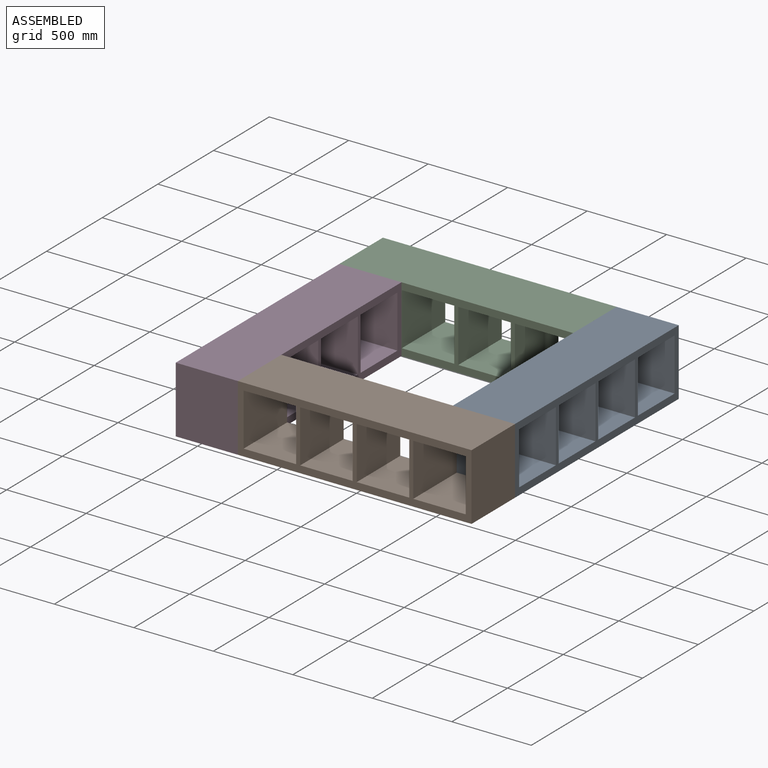
[diagram: assembled view]
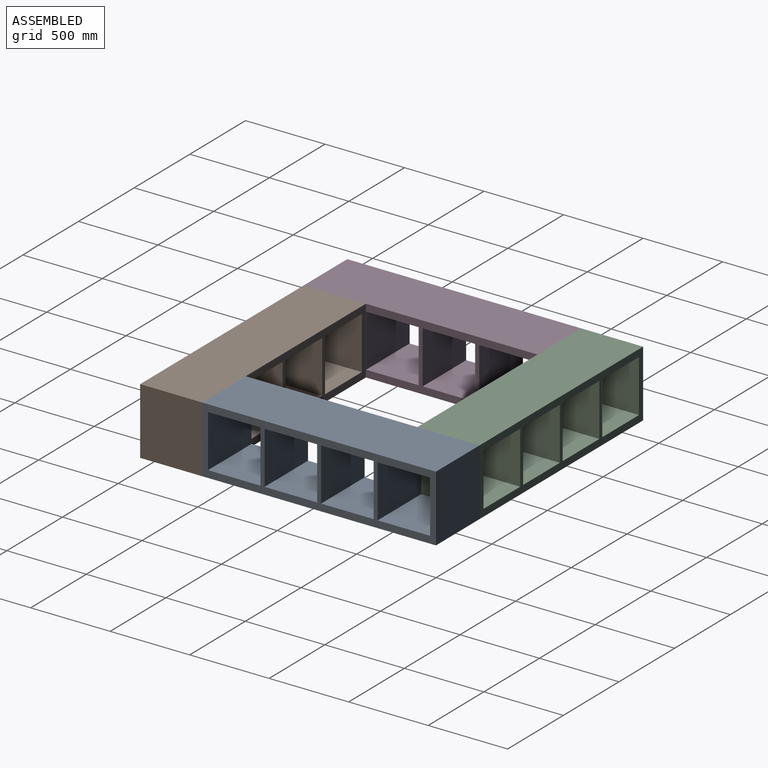
[diagram: assembled view, second angle]
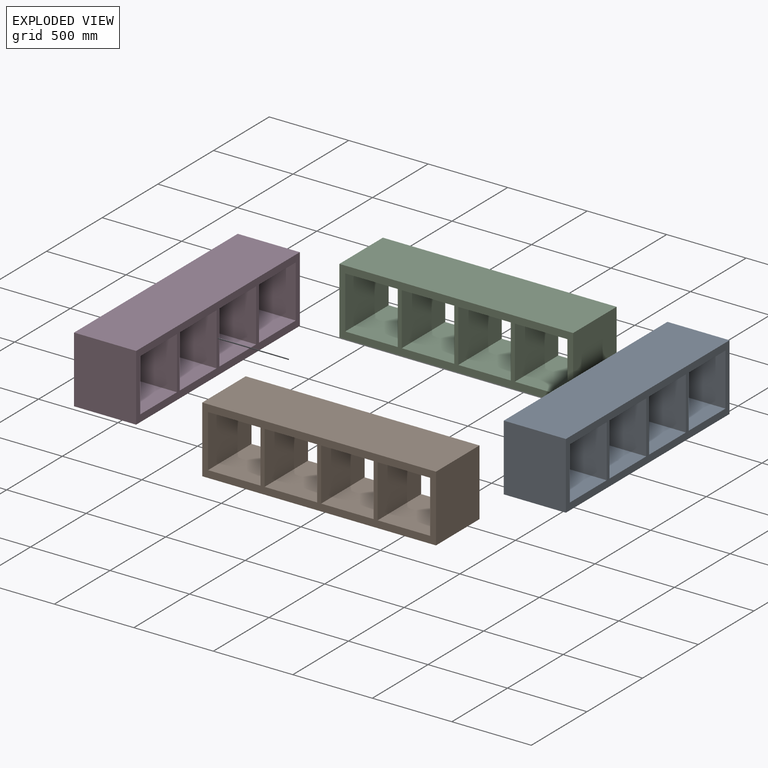
[diagram: exploded view]
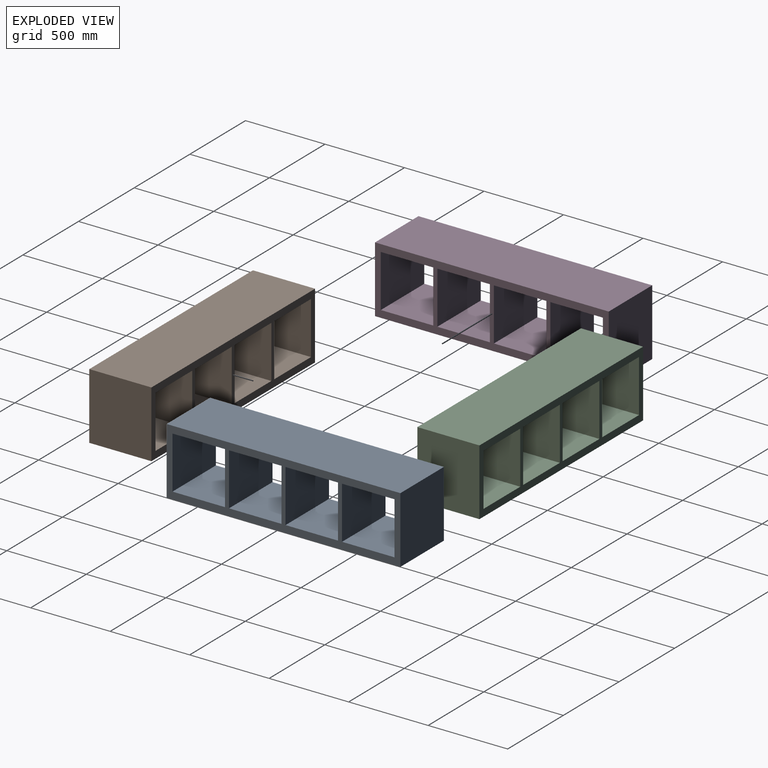
[diagram: exploded view, second angle]
ASSEMBLY  parts=4 mates=3
PART A: 22 faces, bbox 1470x390.5x419.1 mm
  f0: plane 390.53x330.2mm, normal (0,0,1), area 128951.4mm2, adj f1,f19,f20,f21
  f1: plane 390.53x330.2mm, normal (1,0,0), area 128951.4mm2, adj f0,f2,f20,f21
  f2: plane 390.53x330.2mm, normal (0,0,-1), area 128951.4mm2, adj f1,f19,f20,f21
  f3: plane 390.53x330.2mm, normal (1,0,0), area 128951.4mm2, adj f4,f15,f20,f21
  f4: plane 390.53x330.2mm, normal (0,0,-1), area 128951.4mm2, adj f3,f5,f20,f21
  f5: plane 390.53x330.2mm, normal (-1,0,0), area 128951.4mm2, adj f4,f15,f20,f21
  f6: plane 390.53x330.2mm, normal (0,0,1), area 128951.4mm2, adj f7,f16,f20,f21
  f7: plane 390.53x330.2mm, normal (1,0,0), area 128951.4mm2, adj f6,f8,f20,f21
  f8: plane 390.53x330.2mm, normal (0,0,-1), area 128951.4mm2, adj f7,f16,f20,f21
  f9: plane 390.53x330.2mm, normal (0,0,1), area 128951.4mm2, adj f10,f17,f20,f21
  f10: plane 390.53x330.2mm, normal (1,0,0), area 128951.4mm2, adj f9,f11,f20,f21
  f11: plane 390.53x330.2mm, normal (0,0,-1), area 128951.4mm2, adj f10,f17,f20,f21
  f12: plane 419.1x390.53mm, normal (1,0,0), area 163669mm2, adj f13,f18,f20,f21
  f13: plane 1470.03x390.53mm, normal (0,0,1), area 574081.5mm2, adj f12,f14,f20,f21
  f14: plane 419.1x390.53mm, normal (-1,0,0), area 163669mm2, adj f13,f18,f20,f21
  f15: plane 390.53x330.2mm, normal (0,0,1), area 128951.4mm2, adj f3,f5,f20,f21
  f16: plane 390.53x330.2mm, normal (-1,0,0), area 128951.4mm2, adj f6,f8,f20,f21
  f17: plane 390.53x330.2mm, normal (-1,0,0), area 128951.4mm2, adj f9,f11,f20,f21
  f18: plane 1470.03x390.53mm, normal (0,0,-1), area 574081.5mm2, adj f12,f14,f20,f21
  f19: plane 390.53x330.2mm, normal (-1,0,0), area 128951.4mm2, adj f0,f2,f20,f21
  f20: plane 1470.03x419.1mm, normal (0,1,0), area 179959.3mm2, adj f0,f1,f2,f3,f4,f5,f6,f7
  f21: plane 1470.03x419.1mm, normal (0,-1,0), area 179959.3mm2, adj f0,f1,f2,f3,f4,f5,f6,f7
PART B: same geometry as A
PART C: same geometry as A
PART D: same geometry as A
PLACE A rot(axis=(0,0,-1),90deg) t=(4859.08,-3411.37,1578)mm
PLACE B t=(4514.6,-4536.91,1578)mm fixed
PLACE C t=(4124.07,-3066.88,1578)mm
PLACE D rot(axis=(0,0,1),90deg) t=(3779.58,-3801.9,1578)mm
MATE fastened A.f21 <-> C.f12  axis (-1,0,0) through (4859.08,-2676.36,1787.55)mm
MATE fastened D.f21 <-> B.f14  axis (1,0,0) through (3779.58,-4536.91,1787.55)mm
MATE fastened B.f12 <-> A.f20  axis (1,0,0) through (5249.61,-4146.38,1787.55)mm
